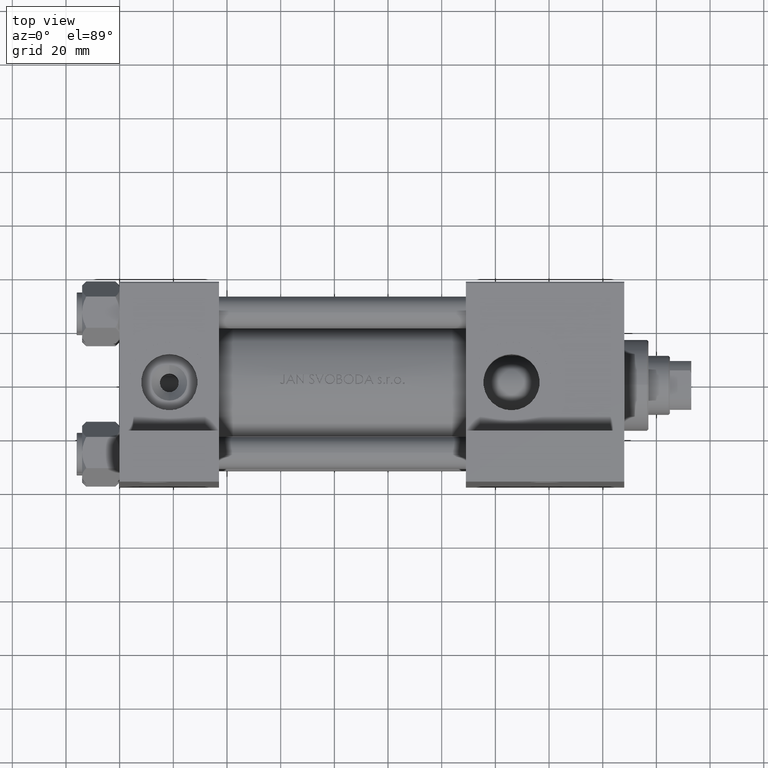
[diagram: clean part render]
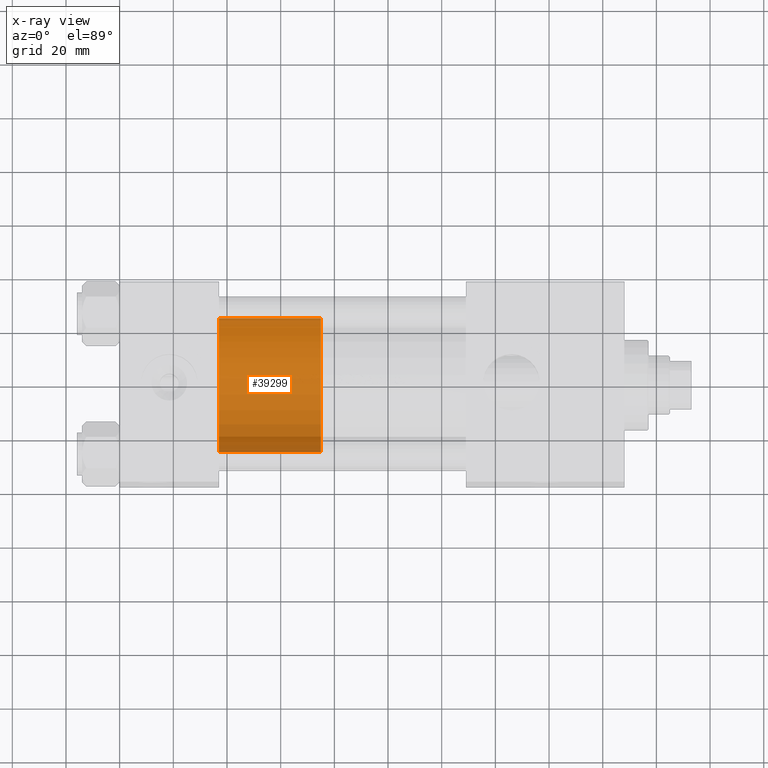
[diagram: x-ray — body ghosted, one internal face saturated and labeled with its STEP entity id]
A machine part, top view, then the same camera in x-ray: the body is ghosted and one INTERNAL B-rep face — a face not visible from any outside direction — is saturated and labeled: STEP entity #39299.
In plain terms, the highlighted cylindrical surface (partial cylindrical patch) has radius 25 mm, axis along (-1, 0, 0).
Its self-contained STEP definition (entity closure, byte-faithful):
#3 = VECTOR ( 'NONE', #37880, 1000.000000000000000 ) ;
#407 = ORIENTED_EDGE ( 'NONE', *, *, #47704, .F. ) ;
#879 = DIRECTION ( 'NONE',  ( -0.000000000000000000, -0.000000000000000000, -1.000000000000000000 ) ) ;
#6085 = CARTESIAN_POINT ( 'NONE',  ( -25.00000000000000000, 0.000000000000000000, 38.00000000000000000 ) ) ;
#8120 = AXIS2_PLACEMENT_3D ( 'NONE', #19319, #879, #15588 ) ;
#10116 = CARTESIAN_POINT ( 'NONE',  ( 0.000000000000000000, 0.000000000000000000, 0.000000000000000000 ) ) ;
#10241 = CARTESIAN_POINT ( 'NONE',  ( 25.00000000000000000, 3.061616997868383043E-15, 0.000000000000000000 ) ) ;
#10839 = DIRECTION ( 'NONE',  ( 0.000000000000000000, 0.000000000000000000, 1.000000000000000000 ) ) ;
#15588 = DIRECTION ( 'NONE',  ( -1.000000000000000000, 0.000000000000000000, 0.000000000000000000 ) ) ;
#15636 = AXIS2_PLACEMENT_3D ( 'NONE', #10116, #10839, #40029 ) ;
#15675 = EDGE_LOOP ( 'NONE', ( #407, #29425, #30888, #27157 ) ) ;
#17969 = EDGE_CURVE ( 'NONE', #34644, #34009, #29940, .T. ) ;
#19319 = CARTESIAN_POINT ( 'NONE',  ( 0.000000000000000000, 0.000000000000000000, 38.00000000000000000 ) ) ;
#23291 = VERTEX_POINT ( 'NONE', #32449 ) ;
#23528 = CYLINDRICAL_SURFACE ( 'NONE', #8120, 25.00000000000000000 ) ;
#25260 = CARTESIAN_POINT ( 'NONE',  ( 0.000000000000000000, 0.000000000000000000, 38.00000000000000000 ) ) ;
#27157 = ORIENTED_EDGE ( 'NONE', *, *, #32936, .F. ) ;
#29246 = DIRECTION ( 'NONE',  ( 1.000000000000000000, 0.000000000000000000, 0.000000000000000000 ) ) ;
#29425 = ORIENTED_EDGE ( 'NONE', *, *, #37551, .T. ) ;
#29940 = CIRCLE ( 'NONE', #15636, 25.00000000000000000 ) ;
#30888 = ORIENTED_EDGE ( 'NONE', *, *, #17969, .T. ) ;
#31099 = CARTESIAN_POINT ( 'NONE',  ( -25.00000000000000000, 0.000000000000000000, 0.000000000000000000 ) ) ;
#32449 = CARTESIAN_POINT ( 'NONE',  ( 25.00000000000000000, 3.061616997868383043E-15, 38.00000000000000000 ) ) ;
#32739 = LINE ( 'NONE', #6085, #3 ) ;
#32936 = EDGE_CURVE ( 'NONE', #44107, #34009, #32739, .T. ) ;
#34009 = VERTEX_POINT ( 'NONE', #31099 ) ;
#34134 = AXIS2_PLACEMENT_3D ( 'NONE', #25260, #40478, #29246 ) ;
#34644 = VERTEX_POINT ( 'NONE', #10241 ) ;
#35749 = CIRCLE ( 'NONE', #34134, 25.00000000000000000 ) ;
#37551 = EDGE_CURVE ( 'NONE', #23291, #34644, #45509, .T. ) ;
#37880 = DIRECTION ( 'NONE',  ( -0.000000000000000000, -0.000000000000000000, -1.000000000000000000 ) ) ;
#39299 = ADVANCED_FACE ( 'NONE', ( #41739 ), #23528, .T. ) ;
#40029 = DIRECTION ( 'NONE',  ( 1.000000000000000000, 0.000000000000000000, 0.000000000000000000 ) ) ;
#40478 = DIRECTION ( 'NONE',  ( 0.000000000000000000, 0.000000000000000000, 1.000000000000000000 ) ) ;
#41031 = CARTESIAN_POINT ( 'NONE',  ( 25.00000000000000000, 3.061616997868383043E-15, 38.00000000000000000 ) ) ;
#41739 = FACE_OUTER_BOUND ( 'NONE', #15675, .T. ) ;
#44107 = VERTEX_POINT ( 'NONE', #47789 ) ;
#45509 = LINE ( 'NONE', #41031, #47079 ) ;
#47079 = VECTOR ( 'NONE', #48741, 1000.000000000000000 ) ;
#47704 = EDGE_CURVE ( 'NONE', #23291, #44107, #35749, .T. ) ;
#47789 = CARTESIAN_POINT ( 'NONE',  ( -25.00000000000000000, 0.000000000000000000, 38.00000000000000000 ) ) ;
#48741 = DIRECTION ( 'NONE',  ( -0.000000000000000000, -0.000000000000000000, -1.000000000000000000 ) ) ;